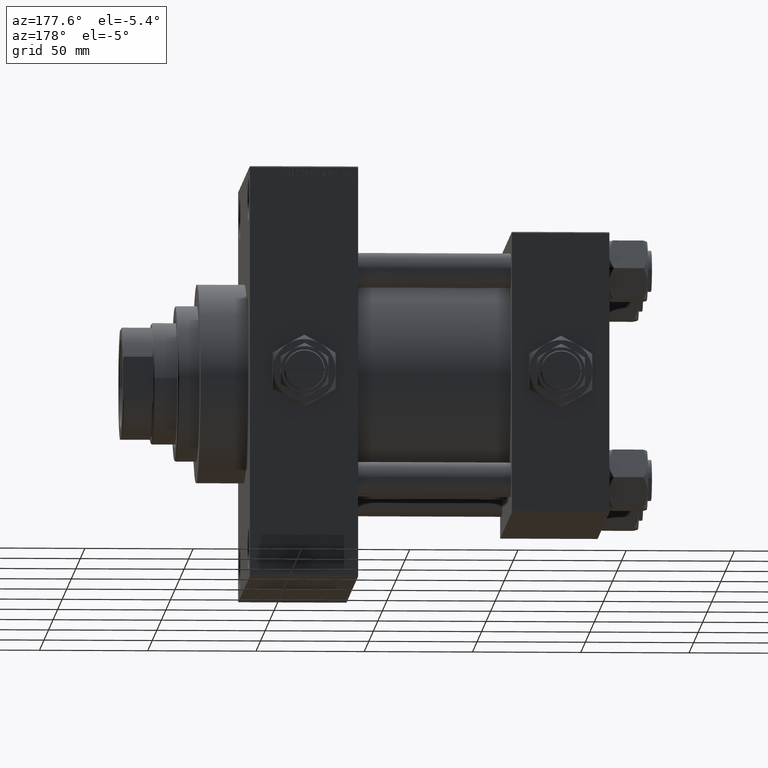
[diagram: clean part render]
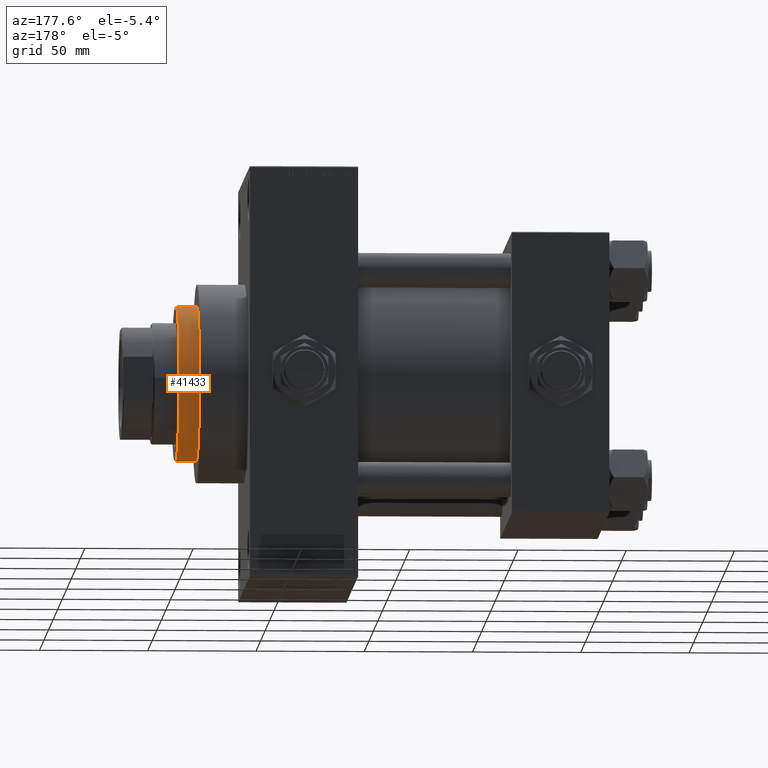
[diagram: same view with one face highlighted and labeled with its STEP entity id]
A machine part, auxiliary view. The second image highlights one B-rep face of the part: STEP entity #41433.
In plain terms, the highlighted cylindrical surface (partial cylindrical patch) has radius 36 mm, axis along (-1, 0, 0).
Its self-contained STEP definition (entity closure, byte-faithful):
#256 = VERTEX_POINT ( 'NONE', #33524 ) ;
#2058 = ORIENTED_EDGE ( 'NONE', *, *, #48844, .T. ) ;
#2252 = CYLINDRICAL_SURFACE ( 'NONE', #35935, 36.00000000000000000 ) ;
#3436 = DIRECTION ( 'NONE',  ( -0.000000000000000000, -0.000000000000000000, -1.000000000000000000 ) ) ;
#5085 = DIRECTION ( 'NONE',  ( 0.000000000000000000, 0.000000000000000000, -1.000000000000000000 ) ) ;
#7224 = EDGE_CURVE ( 'NONE', #40497, #15355, #34213, .T. ) ;
#7669 = ORIENTED_EDGE ( 'NONE', *, *, #35354, .F. ) ;
#9033 = DIRECTION ( 'NONE',  ( -0.000000000000000000, -0.000000000000000000, -1.000000000000000000 ) ) ;
#9548 = DIRECTION ( 'NONE',  ( 0.000000000000000000, 0.000000000000000000, 1.000000000000000000 ) ) ;
#13242 = ORIENTED_EDGE ( 'NONE', *, *, #28524, .T. ) ;
#13582 = DIRECTION ( 'NONE',  ( 1.000000000000000000, 0.000000000000000000, 0.000000000000000000 ) ) ;
#14638 = AXIS2_PLACEMENT_3D ( 'NONE', #24007, #5085, #42949 ) ;
#15033 = CARTESIAN_POINT ( 'NONE',  ( -36.00000000000000000, 0.000000000000000000, 53.26000000000000512 ) ) ;
#15355 = VERTEX_POINT ( 'NONE', #40339 ) ;
#15618 = VECTOR ( 'NONE', #9033, 1000.000000000000000 ) ;
#17020 = VECTOR ( 'NONE', #3436, 1000.000000000000000 ) ;
#17622 = CARTESIAN_POINT ( 'NONE',  ( 0.000000000000000000, 0.000000000000000000, 53.26000000000000512 ) ) ;
#24007 = CARTESIAN_POINT ( 'NONE',  ( 0.000000000000000000, 0.000000000000000000, 52.76000000000001933 ) ) ;
#25652 = VERTEX_POINT ( 'NONE', #40407 ) ;
#28524 = EDGE_CURVE ( 'NONE', #25652, #40497, #33190, .T. ) ;
#33016 = DIRECTION ( 'NONE',  ( -0.000000000000000000, -0.000000000000000000, -1.000000000000000000 ) ) ;
#33190 = CIRCLE ( 'NONE', #14638, 36.00000000000000000 ) ;
#33524 = CARTESIAN_POINT ( 'NONE',  ( 36.00000000000000000, 4.408728476930470856E-15, 43.25999999999999801 ) ) ;
#34213 = LINE ( 'NONE', #15033, #17020 ) ;
#35354 = EDGE_CURVE ( 'NONE', #25652, #256, #46904, .T. ) ;
#35787 = CARTESIAN_POINT ( 'NONE',  ( 36.00000000000000000, 4.408728476930470856E-15, 53.26000000000000512 ) ) ;
#35935 = AXIS2_PLACEMENT_3D ( 'NONE', #17622, #33016, #48421 ) ;
#36851 = ORIENTED_EDGE ( 'NONE', *, *, #7224, .T. ) ;
#40339 = CARTESIAN_POINT ( 'NONE',  ( -36.00000000000000000, 0.000000000000000000, 43.25999999999999801 ) ) ;
#40407 = CARTESIAN_POINT ( 'NONE',  ( 36.00000000000000000, 4.408728476930470856E-15, 52.76000000000001933 ) ) ;
#40497 = VERTEX_POINT ( 'NONE', #49458 ) ;
#40591 = FACE_OUTER_BOUND ( 'NONE', #43947, .T. ) ;
#40759 = CIRCLE ( 'NONE', #48839, 36.00000000000000000 ) ;
#41433 = ADVANCED_FACE ( 'NONE', ( #40591 ), #2252, .T. ) ;
#42949 = DIRECTION ( 'NONE',  ( 1.000000000000000000, 0.000000000000000000, 0.000000000000000000 ) ) ;
#43947 = EDGE_LOOP ( 'NONE', ( #7669, #13242, #36851, #2058 ) ) ;
#44139 = CARTESIAN_POINT ( 'NONE',  ( 0.000000000000000000, 0.000000000000000000, 43.25999999999999801 ) ) ;
#46904 = LINE ( 'NONE', #35787, #15618 ) ;
#48421 = DIRECTION ( 'NONE',  ( -1.000000000000000000, 0.000000000000000000, 0.000000000000000000 ) ) ;
#48839 = AXIS2_PLACEMENT_3D ( 'NONE', #44139, #9548, #13582 ) ;
#48844 = EDGE_CURVE ( 'NONE', #15355, #256, #40759, .T. ) ;
#49458 = CARTESIAN_POINT ( 'NONE',  ( -36.00000000000000000, 0.000000000000000000, 52.76000000000001933 ) ) ;